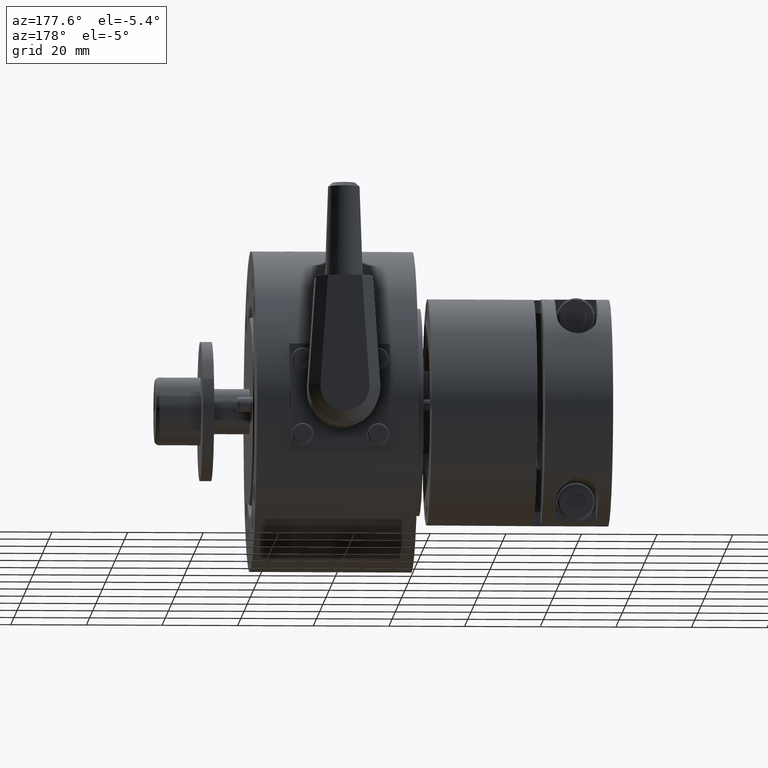
[diagram: clean part render]
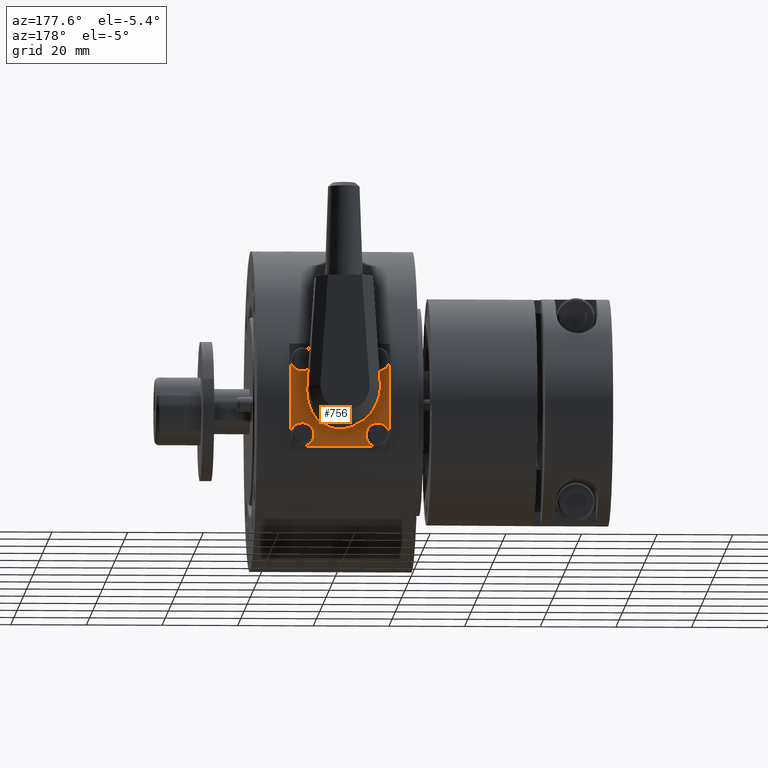
[diagram: same view with one face highlighted and labeled with its STEP entity id]
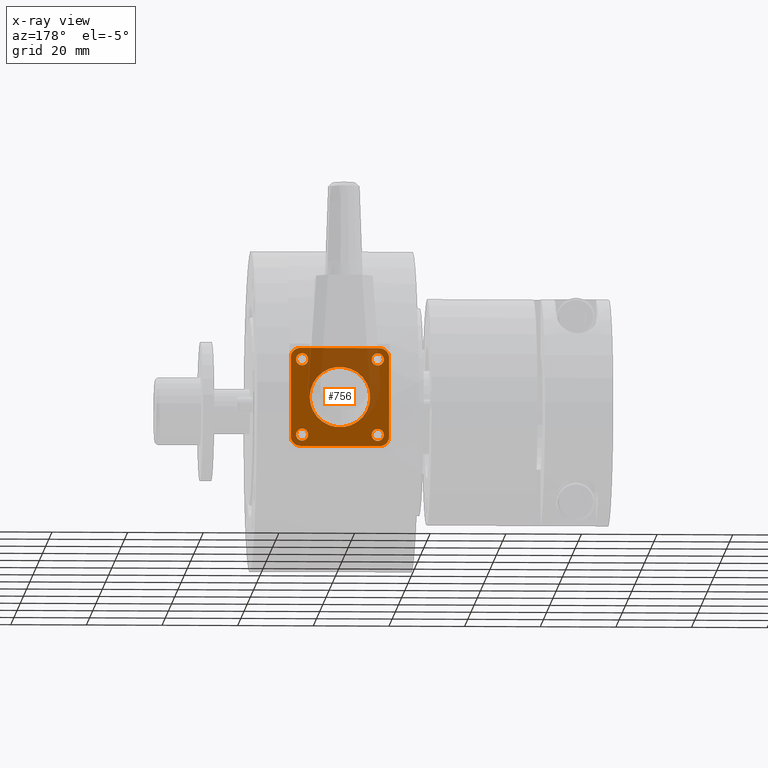
[diagram: x-ray of the same camera — body ghosted, the highlighted face saturated]
A machine part, auxiliary view. The second image highlights one B-rep face of the part: STEP entity #756.
The next image is the same camera in x-ray: the body ghosted, the highlighted face saturated — about 34% of this face is hidden behind the body in this view.
In plain terms, the highlighted planar face has unit normal (0, 1, -0).
Its self-contained STEP definition (entity closure, byte-faithful):
#75 = AXIS2_PLACEMENT_3D ( 'NONE', #10022, #19361, #17680 ) ;
#133 = EDGE_CURVE ( 'NONE', #871, #13620, #6769, .T. ) ;
#174 = CARTESIAN_POINT ( 'NONE',  ( -93.95709301442258266, -117.5890663654865875, -0.5000000000000000000 ) ) ;
#195 = DIRECTION ( 'NONE',  ( -1.000000000000000000, 0.000000000000000000, 0.000000000000000000 ) ) ;
#243 = EDGE_LOOP ( 'NONE', ( #17565, #8350 ) ) ;
#385 = DIRECTION ( 'NONE',  ( 0.000000000000000000, 1.000000000000000000, 0.000000000000000000 ) ) ;
#477 = CARTESIAN_POINT ( 'NONE',  ( -93.95709301442258266, -117.5890663654865875, -13.50000000000000000 ) ) ;
#660 = AXIS2_PLACEMENT_3D ( 'NONE', #174, #3350, #14266 ) ;
#661 = ORIENTED_EDGE ( 'NONE', *, *, #1332, .T. ) ;
#675 = CARTESIAN_POINT ( 'NONE',  ( -93.95709301442258266, -139.5890663654865875, 10.00000000000000000 ) ) ;
#756 = ADVANCED_FACE ( 'NONE', ( #15646, #17847, #1260, #9212, #6493, #4482 ), #10871, .T. ) ;
#790 = AXIS2_PLACEMENT_3D ( 'NONE', #3071, #20352, #4700 ) ;
#871 = VERTEX_POINT ( 'NONE', #14985 ) ;
#916 = DIRECTION ( 'NONE',  ( 0.000000000000000000, 0.000000000000000000, 1.000000000000000000 ) ) ;
#965 = VERTEX_POINT ( 'NONE', #5561 ) ;
#1100 = CARTESIAN_POINT ( 'NONE',  ( -93.95709301442258266, -137.0890663654865875, -11.00000000000000000 ) ) ;
#1252 = DIRECTION ( 'NONE',  ( -1.000000000000000000, 0.000000000000000000, 0.000000000000000000 ) ) ;
#1258 = AXIS2_PLACEMENT_3D ( 'NONE', #7816, #18852, #9403 ) ;
#1260 = FACE_BOUND ( 'NONE', #17182, .T. ) ;
#1332 = EDGE_CURVE ( 'NONE', #17609, #4455, #3707, .T. ) ;
#1373 = CARTESIAN_POINT ( 'NONE',  ( -93.95709301442258266, -136.5890663654865875, 11.09999999999999964 ) ) ;
#1509 = DIRECTION ( 'NONE',  ( 0.000000000000000000, 0.000000000000000000, -1.000000000000000000 ) ) ;
#1539 = EDGE_CURVE ( 'NONE', #12582, #19601, #11680, .T. ) ;
#1755 = DIRECTION ( 'NONE',  ( 0.000000000000000000, 0.000000000000000000, 1.000000000000000000 ) ) ;
#1851 = EDGE_CURVE ( 'NONE', #4472, #14590, #2922, .T. ) ;
#1887 = ORIENTED_EDGE ( 'NONE', *, *, #17166, .T. ) ;
#2012 = VERTEX_POINT ( 'NONE', #15870 ) ;
#2390 = VECTOR ( 'NONE', #6806, 1000.000000000000000 ) ;
#2398 = CIRCLE ( 'NONE', #20031, 2.500000000000000444 ) ;
#2404 = VERTEX_POINT ( 'NONE', #15075 ) ;
#2625 = DIRECTION ( 'NONE',  ( 0.000000000000000000, -1.000000000000000000, -0.000000000000000000 ) ) ;
#2909 = ORIENTED_EDGE ( 'NONE', *, *, #8150, .T. ) ;
#2922 = CIRCLE ( 'NONE', #16474, 2.500000000000000444 ) ;
#3071 = CARTESIAN_POINT ( 'NONE',  ( -93.95709301442258266, -126.5890663654865875, -0.5000000000000000000 ) ) ;
#3350 = DIRECTION ( 'NONE',  ( 1.000000000000000000, 0.000000000000000000, 0.000000000000000000 ) ) ;
#3553 = AXIS2_PLACEMENT_3D ( 'NONE', #8939, #7408, #9004 ) ;
#3683 = AXIS2_PLACEMENT_3D ( 'NONE', #12982, #17499, #385 ) ;
#3707 = CIRCLE ( 'NONE', #3553, 1.600000000000000755 ) ;
#3733 = DIRECTION ( 'NONE',  ( 0.000000000000000000, 0.000000000000000000, -1.000000000000000000 ) ) ;
#3918 = CIRCLE ( 'NONE', #3683, 2.500000000000002220 ) ;
#4455 = VERTEX_POINT ( 'NONE', #14008 ) ;
#4472 = VERTEX_POINT ( 'NONE', #17390 ) ;
#4482 = FACE_OUTER_BOUND ( 'NONE', #11885, .T. ) ;
#4531 = EDGE_CURVE ( 'NONE', #2404, #9693, #13562, .T. ) ;
#4645 = CARTESIAN_POINT ( 'NONE',  ( -93.95709301442258266, -116.5890663654865875, 7.899999999999999467 ) ) ;
#4646 = ORIENTED_EDGE ( 'NONE', *, *, #4708, .T. ) ;
#4700 = DIRECTION ( 'NONE',  ( 0.000000000000000000, 0.000000000000000000, -1.000000000000000000 ) ) ;
#4708 = EDGE_CURVE ( 'NONE', #14590, #16288, #15040, .T. ) ;
#5000 = CARTESIAN_POINT ( 'NONE',  ( -93.95709301442258266, -116.5890663654865875, -10.50000000000000000 ) ) ;
#5185 = CIRCLE ( 'NONE', #15671, 8.000000000000000000 ) ;
#5342 = CARTESIAN_POINT ( 'NONE',  ( -93.95709301442258266, -139.5890663654865875, -0.5000000000000000000 ) ) ;
#5461 = CIRCLE ( 'NONE', #13024, 1.600000000000000755 ) ;
#5561 = CARTESIAN_POINT ( 'NONE',  ( -93.95709301442258266, -137.0890663654865875, 12.50000000000000000 ) ) ;
#5605 = DIRECTION ( 'NONE',  ( -1.000000000000000000, 0.000000000000000000, 0.000000000000000000 ) ) ;
#5890 = CARTESIAN_POINT ( 'NONE',  ( -93.95709301442258266, -126.5890663654865875, -8.500000000000000000 ) ) ;
#5953 = DIRECTION ( 'NONE',  ( 0.000000000000000000, 0.000000000000000000, -1.000000000000000000 ) ) ;
#6148 = CARTESIAN_POINT ( 'NONE',  ( -93.95709301442258266, -126.5890663654865875, -0.5000000000000000000 ) ) ;
#6411 = DIRECTION ( 'NONE',  ( -1.000000000000000000, 0.000000000000000000, 0.000000000000000000 ) ) ;
#6493 = FACE_BOUND ( 'NONE', #10054, .T. ) ;
#6507 = DIRECTION ( 'NONE',  ( 1.000000000000000000, -0.000000000000000000, -0.000000000000000000 ) ) ;
#6769 = CIRCLE ( 'NONE', #790, 8.000000000000000000 ) ;
#6804 = ORIENTED_EDGE ( 'NONE', *, *, #15084, .T. ) ;
#6806 = DIRECTION ( 'NONE',  ( -0.000000000000000000, 1.000000000000000000, 0.000000000000000000 ) ) ;
#6965 = CIRCLE ( 'NONE', #17212, 1.600000000000000755 ) ;
#6986 = EDGE_CURVE ( 'NONE', #13105, #7232, #12716, .T. ) ;
#7232 = VERTEX_POINT ( 'NONE', #13362 ) ;
#7408 = DIRECTION ( 'NONE',  ( -1.000000000000000000, 0.000000000000000000, 0.000000000000000000 ) ) ;
#7421 = CARTESIAN_POINT ( 'NONE',  ( -93.95709301442258266, -113.5890663654865875, 10.00000000000000000 ) ) ;
#7571 = CARTESIAN_POINT ( 'NONE',  ( -93.95709301442258266, -116.5890663654865875, 9.500000000000000000 ) ) ;
#7665 = ORIENTED_EDGE ( 'NONE', *, *, #1851, .T. ) ;
#7816 = CARTESIAN_POINT ( 'NONE',  ( -93.95709301442258266, -116.0890663654865875, -11.00000000000000000 ) ) ;
#7911 = LINE ( 'NONE', #10637, #14108 ) ;
#8150 = EDGE_CURVE ( 'NONE', #4455, #17609, #5461, .T. ) ;
#8350 = ORIENTED_EDGE ( 'NONE', *, *, #133, .T. ) ;
#8939 = CARTESIAN_POINT ( 'NONE',  ( -93.95709301442258266, -136.5890663654865875, -10.50000000000000000 ) ) ;
#9004 = DIRECTION ( 'NONE',  ( 0.000000000000000000, 0.000000000000000000, 1.000000000000000000 ) ) ;
#9025 = ORIENTED_EDGE ( 'NONE', *, *, #15795, .T. ) ;
#9212 = FACE_BOUND ( 'NONE', #9813, .T. ) ;
#9403 = DIRECTION ( 'NONE',  ( 0.000000000000000000, -1.000000000000000000, 0.000000000000000000 ) ) ;
#9534 = CARTESIAN_POINT ( 'NONE',  ( -93.95709301442258266, -113.5890663654865875, -11.00000000000000000 ) ) ;
#9693 = VERTEX_POINT ( 'NONE', #17726 ) ;
#9813 = EDGE_LOOP ( 'NONE', ( #20338, #15312 ) ) ;
#9923 = VECTOR ( 'NONE', #10844, 1000.000000000000000 ) ;
#10022 = CARTESIAN_POINT ( 'NONE',  ( -93.95709301442258266, -116.5890663654865875, 9.500000000000000000 ) ) ;
#10054 = EDGE_LOOP ( 'NONE', ( #1887, #13587 ) ) ;
#10086 = EDGE_CURVE ( 'NONE', #2012, #965, #7911, .T. ) ;
#10132 = CIRCLE ( 'NONE', #18416, 1.600000000000000755 ) ;
#10232 = VERTEX_POINT ( 'NONE', #1373 ) ;
#10287 = DIRECTION ( 'NONE',  ( -1.000000000000000000, 0.000000000000000000, 0.000000000000000000 ) ) ;
#10457 = AXIS2_PLACEMENT_3D ( 'NONE', #5000, #195, #11321 ) ;
#10585 = EDGE_CURVE ( 'NONE', #12242, #10232, #19750, .T. ) ;
#10637 = CARTESIAN_POINT ( 'NONE',  ( -93.95709301442258266, -117.5890663654865875, 12.50000000000000000 ) ) ;
#10761 = AXIS2_PLACEMENT_3D ( 'NONE', #19796, #5605, #18327 ) ;
#10844 = DIRECTION ( 'NONE',  ( -0.000000000000000000, -0.000000000000000000, 1.000000000000000000 ) ) ;
#10871 = PLANE ( 'NONE',  #660 ) ;
#11128 = CARTESIAN_POINT ( 'NONE',  ( -93.95709301442258266, -116.5890663654865875, -10.50000000000000000 ) ) ;
#11321 = DIRECTION ( 'NONE',  ( 0.000000000000000000, 0.000000000000000000, 1.000000000000000000 ) ) ;
#11512 = ORIENTED_EDGE ( 'NONE', *, *, #1539, .T. ) ;
#11680 = LINE ( 'NONE', #17035, #9923 ) ;
#11763 = CARTESIAN_POINT ( 'NONE',  ( -93.95709301442258266, -136.5890663654865875, -10.50000000000000000 ) ) ;
#11885 = EDGE_LOOP ( 'NONE', ( #7665, #4646, #20153, #11512, #9025, #13018, #19073, #18487 ) ) ;
#11984 = CARTESIAN_POINT ( 'NONE',  ( -93.95709301442258266, -136.5890663654865875, 9.500000000000000000 ) ) ;
#12242 = VERTEX_POINT ( 'NONE', #19703 ) ;
#12582 = VERTEX_POINT ( 'NONE', #9534 ) ;
#12716 = CIRCLE ( 'NONE', #75, 1.600000000000000755 ) ;
#12778 = AXIS2_PLACEMENT_3D ( 'NONE', #11984, #16771, #916 ) ;
#12944 = DIRECTION ( 'NONE',  ( 0.000000000000000000, 0.000000000000000000, 1.000000000000000000 ) ) ;
#12982 = CARTESIAN_POINT ( 'NONE',  ( -93.95709301442258266, -116.0890663654865875, 10.00000000000000000 ) ) ;
#13018 = ORIENTED_EDGE ( 'NONE', *, *, #10086, .T. ) ;
#13024 = AXIS2_PLACEMENT_3D ( 'NONE', #11763, #10287, #13215 ) ;
#13068 = VECTOR ( 'NONE', #3733, 1000.000000000000000 ) ;
#13105 = VERTEX_POINT ( 'NONE', #4645 ) ;
#13215 = DIRECTION ( 'NONE',  ( 0.000000000000000000, 0.000000000000000000, 1.000000000000000000 ) ) ;
#13362 = CARTESIAN_POINT ( 'NONE',  ( -93.95709301442258266, -116.5890663654865875, 11.09999999999999964 ) ) ;
#13562 = CIRCLE ( 'NONE', #10457, 1.600000000000000755 ) ;
#13574 = CARTESIAN_POINT ( 'NONE',  ( -93.95709301442258266, -136.5890663654865875, -8.900000000000000355 ) ) ;
#13587 = ORIENTED_EDGE ( 'NONE', *, *, #6986, .T. ) ;
#13620 = VERTEX_POINT ( 'NONE', #5890 ) ;
#14008 = CARTESIAN_POINT ( 'NONE',  ( -93.95709301442258266, -136.5890663654865875, -12.10000000000000142 ) ) ;
#14108 = VECTOR ( 'NONE', #2625, 1000.000000000000000 ) ;
#14154 = DIRECTION ( 'NONE',  ( 0.000000000000000000, 0.000000000000000000, 1.000000000000000000 ) ) ;
#14266 = DIRECTION ( 'NONE',  ( 0.000000000000000000, 0.000000000000000000, -1.000000000000000000 ) ) ;
#14279 = LINE ( 'NONE', #5342, #13068 ) ;
#14318 = CARTESIAN_POINT ( 'NONE',  ( -93.95709301442258266, -137.0890663654865875, 10.00000000000000000 ) ) ;
#14430 = EDGE_CURVE ( 'NONE', #16288, #12582, #19349, .T. ) ;
#14590 = VERTEX_POINT ( 'NONE', #20535 ) ;
#14985 = CARTESIAN_POINT ( 'NONE',  ( -93.95709301442258266, -126.5890663654865875, 7.500000000000000000 ) ) ;
#15040 = LINE ( 'NONE', #477, #2390 ) ;
#15075 = CARTESIAN_POINT ( 'NONE',  ( -93.95709301442258266, -116.5890663654865875, -12.10000000000000142 ) ) ;
#15084 = EDGE_CURVE ( 'NONE', #9693, #2404, #6965, .T. ) ;
#15312 = ORIENTED_EDGE ( 'NONE', *, *, #10585, .T. ) ;
#15351 = CIRCLE ( 'NONE', #12778, 1.600000000000000755 ) ;
#15363 = CARTESIAN_POINT ( 'NONE',  ( -93.95709301442258266, -116.0890663654865875, -13.50000000000000000 ) ) ;
#15646 = FACE_BOUND ( 'NONE', #243, .T. ) ;
#15671 = AXIS2_PLACEMENT_3D ( 'NONE', #6148, #17071, #5953 ) ;
#15795 = EDGE_CURVE ( 'NONE', #19601, #2012, #3918, .T. ) ;
#15870 = CARTESIAN_POINT ( 'NONE',  ( -93.95709301442258266, -116.0890663654865875, 12.50000000000000000 ) ) ;
#16212 = EDGE_CURVE ( 'NONE', #13620, #871, #5185, .T. ) ;
#16288 = VERTEX_POINT ( 'NONE', #15363 ) ;
#16474 = AXIS2_PLACEMENT_3D ( 'NONE', #1100, #17225, #1509 ) ;
#16765 = EDGE_CURVE ( 'NONE', #10232, #12242, #15351, .T. ) ;
#16771 = DIRECTION ( 'NONE',  ( -1.000000000000000000, 0.000000000000000000, 0.000000000000000000 ) ) ;
#16814 = ORIENTED_EDGE ( 'NONE', *, *, #4531, .T. ) ;
#17035 = CARTESIAN_POINT ( 'NONE',  ( -93.95709301442258266, -113.5890663654865875, -0.5000000000000000000 ) ) ;
#17071 = DIRECTION ( 'NONE',  ( -1.000000000000000000, -0.000000000000000000, -0.000000000000000000 ) ) ;
#17166 = EDGE_CURVE ( 'NONE', #7232, #13105, #10132, .T. ) ;
#17182 = EDGE_LOOP ( 'NONE', ( #6804, #16814 ) ) ;
#17212 = AXIS2_PLACEMENT_3D ( 'NONE', #11128, #6411, #12944 ) ;
#17225 = DIRECTION ( 'NONE',  ( 1.000000000000000000, 0.000000000000000000, 0.000000000000000000 ) ) ;
#17390 = CARTESIAN_POINT ( 'NONE',  ( -93.95709301442258266, -139.5890663654865875, -11.00000000000000000 ) ) ;
#17497 = VERTEX_POINT ( 'NONE', #675 ) ;
#17499 = DIRECTION ( 'NONE',  ( 1.000000000000000000, 1.224646999999999890E-16, 0.000000000000000000 ) ) ;
#17565 = ORIENTED_EDGE ( 'NONE', *, *, #16212, .T. ) ;
#17609 = VERTEX_POINT ( 'NONE', #13574 ) ;
#17680 = DIRECTION ( 'NONE',  ( 0.000000000000000000, 0.000000000000000000, 1.000000000000000000 ) ) ;
#17726 = CARTESIAN_POINT ( 'NONE',  ( -93.95709301442258266, -116.5890663654865875, -8.900000000000000355 ) ) ;
#17847 = FACE_BOUND ( 'NONE', #20249, .T. ) ;
#17899 = EDGE_CURVE ( 'NONE', #965, #17497, #2398, .T. ) ;
#18327 = DIRECTION ( 'NONE',  ( 0.000000000000000000, 0.000000000000000000, 1.000000000000000000 ) ) ;
#18416 = AXIS2_PLACEMENT_3D ( 'NONE', #7571, #1252, #14154 ) ;
#18487 = ORIENTED_EDGE ( 'NONE', *, *, #18824, .T. ) ;
#18824 = EDGE_CURVE ( 'NONE', #17497, #4472, #14279, .T. ) ;
#18852 = DIRECTION ( 'NONE',  ( 1.000000000000000000, 1.224646999999999890E-16, -0.000000000000000000 ) ) ;
#19073 = ORIENTED_EDGE ( 'NONE', *, *, #17899, .T. ) ;
#19349 = CIRCLE ( 'NONE', #1258, 2.500000000000002220 ) ;
#19361 = DIRECTION ( 'NONE',  ( -1.000000000000000000, 0.000000000000000000, 0.000000000000000000 ) ) ;
#19601 = VERTEX_POINT ( 'NONE', #7421 ) ;
#19703 = CARTESIAN_POINT ( 'NONE',  ( -93.95709301442258266, -136.5890663654865875, 7.899999999999999467 ) ) ;
#19750 = CIRCLE ( 'NONE', #10761, 1.600000000000000755 ) ;
#19796 = CARTESIAN_POINT ( 'NONE',  ( -93.95709301442258266, -136.5890663654865875, 9.500000000000000000 ) ) ;
#20031 = AXIS2_PLACEMENT_3D ( 'NONE', #14318, #6507, #1755 ) ;
#20153 = ORIENTED_EDGE ( 'NONE', *, *, #14430, .T. ) ;
#20249 = EDGE_LOOP ( 'NONE', ( #661, #2909 ) ) ;
#20338 = ORIENTED_EDGE ( 'NONE', *, *, #16765, .T. ) ;
#20352 = DIRECTION ( 'NONE',  ( -1.000000000000000000, -0.000000000000000000, -0.000000000000000000 ) ) ;
#20535 = CARTESIAN_POINT ( 'NONE',  ( -93.95709301442258266, -137.0890663654865875, -13.50000000000000000 ) ) ;